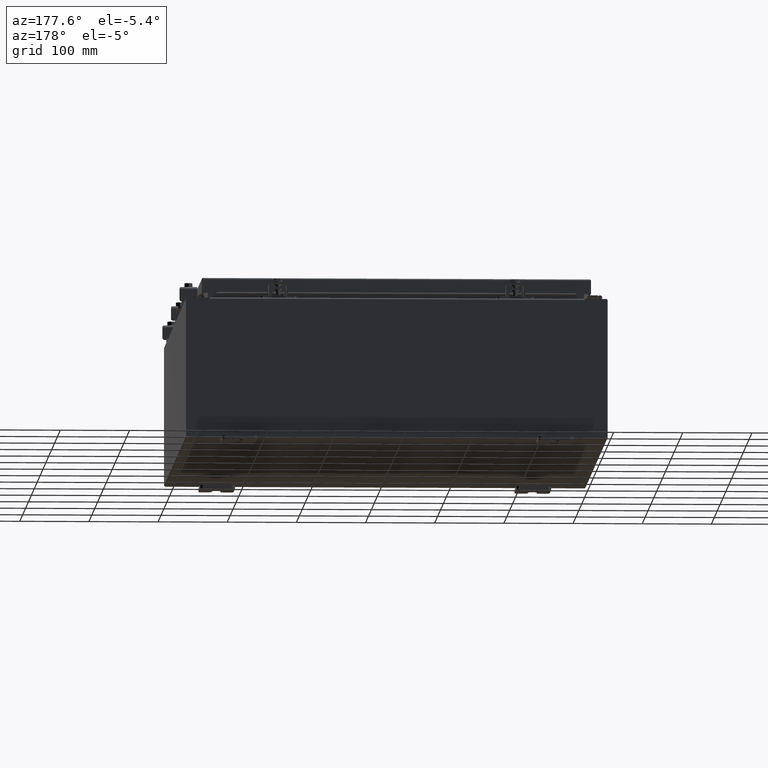
[diagram: clean part render]
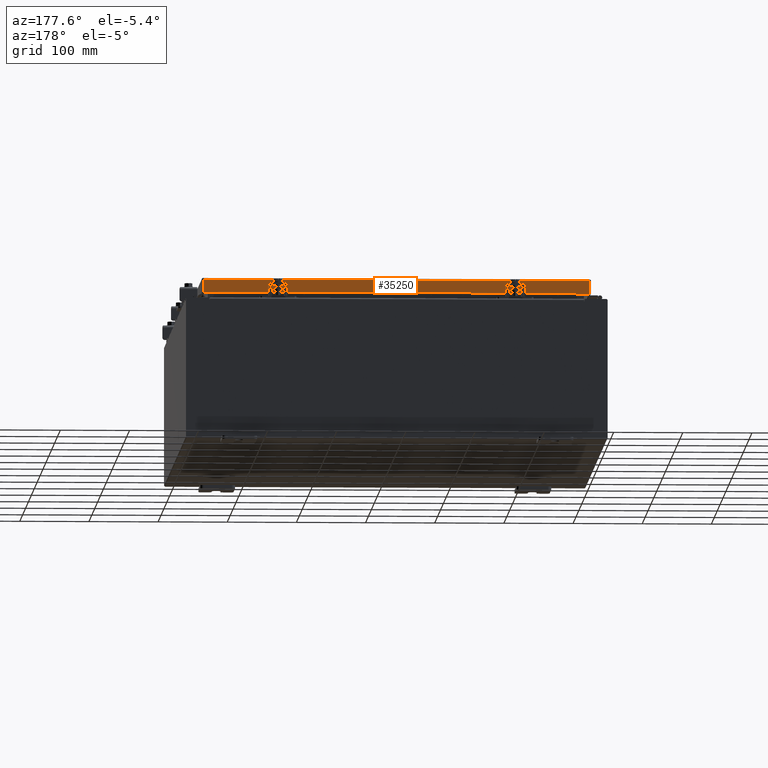
[diagram: same view with one face highlighted and labeled with its STEP entity id]
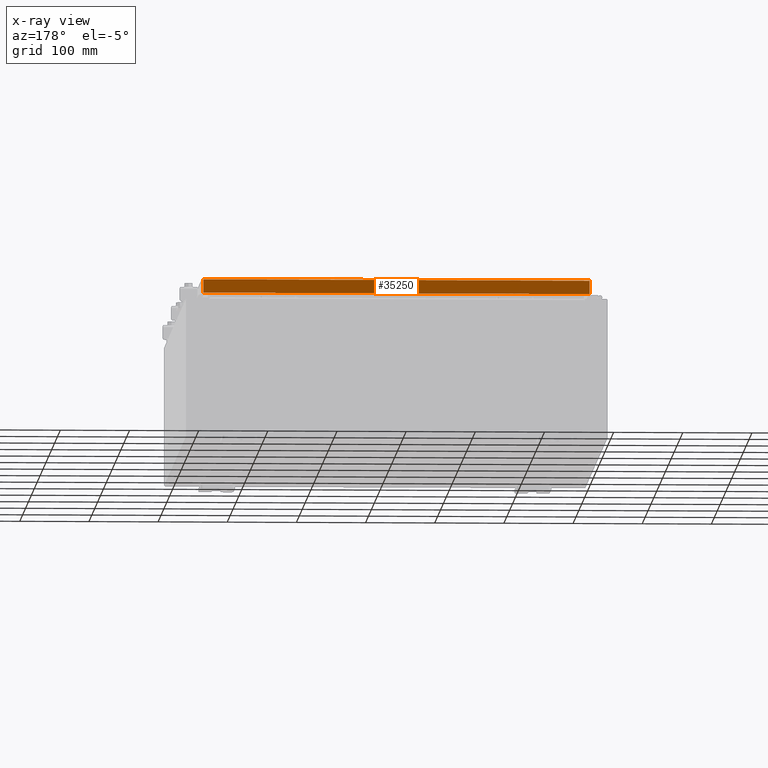
[diagram: x-ray of the same camera — body ghosted, the highlighted face saturated]
A machine part, auxiliary view. The second image highlights one B-rep face of the part: STEP entity #35250.
The next image is the same camera in x-ray: the body ghosted, the highlighted face saturated — about 0% of this face is hidden behind the body in this view.
In plain terms, the highlighted planar face has unit normal (0, -1, -0).
Its self-contained STEP definition (entity closure, byte-faithful):
#470 = DIRECTION ( 'NONE',  ( 1.000000000000000000, -4.379057701015054300E-047, 1.233005954894504400E-016 ) ) ;
#937 = CARTESIAN_POINT ( 'NONE',  ( -10.98915786437626900, 14.09400000000000100, -0.8500000000000024200 ) ) ;
#1884 = ORIENTED_EDGE ( 'NONE', *, *, #10351, .F. ) ;
#1970 = CARTESIAN_POINT ( 'NONE',  ( -10.98915786437626900, 14.09399999999999900, -0.07469999999999978000 ) ) ;
#2483 = LINE ( 'NONE', #1970, #9331 ) ;
#3144 = ORIENTED_EDGE ( 'NONE', *, *, #34781, .F. ) ;
#3390 = FACE_OUTER_BOUND ( 'NONE', #26635, .T. ) ;
#3475 = VERTEX_POINT ( 'NONE', #15462 ) ;
#3788 = LINE ( 'NONE', #26437, #18370 ) ;
#4232 = CARTESIAN_POINT ( 'NONE',  ( -4.898647335700341400E-030, 14.09399999999999900, 3.999012166344507700E-014 ) ) ;
#4462 = VECTOR ( 'NONE', #5288, 39.37007874015748100 ) ;
#5198 = VERTEX_POINT ( 'NONE', #36997 ) ;
#5288 = DIRECTION ( 'NONE',  ( -1.000000000000000000, -3.475696988576942200E-031, -9.473942235605600700E-046 ) ) ;
#5714 = VECTOR ( 'NONE', #27086, 39.37007874015748100 ) ;
#5829 = VERTEX_POINT ( 'NONE', #28747 ) ;
#6561 = LINE ( 'NONE', #36076, #12480 ) ;
#7145 = DIRECTION ( 'NONE',  ( 3.475696988576941300E-031, -1.000000000000000000, -2.818880942772350300E-015 ) ) ;
#8229 = ORIENTED_EDGE ( 'NONE', *, *, #29723, .F. ) ;
#8385 = AXIS2_PLACEMENT_3D ( 'NONE', #4232, #7145, #27399 ) ;
#9331 = VECTOR ( 'NONE', #28050, 39.37007874015748100 ) ;
#9769 = CARTESIAN_POINT ( 'NONE',  ( -11.07799999999999900, 14.09400000000000100, -0.8500000000000024200 ) ) ;
#10351 = EDGE_CURVE ( 'NONE', #3475, #11690, #10589, .T. ) ;
#10589 = LINE ( 'NONE', #21447, #32737 ) ;
#11049 = EDGE_CURVE ( 'NONE', #21235, #3475, #3788, .T. ) ;
#11240 = CARTESIAN_POINT ( 'NONE',  ( 10.98915786437626700, 14.09400000000000100, -0.8499999999999996400 ) ) ;
#11690 = VERTEX_POINT ( 'NONE', #30613 ) ;
#12480 = VECTOR ( 'NONE', #30271, 39.37007874015748100 ) ;
#12683 = VERTEX_POINT ( 'NONE', #11240 ) ;
#15462 = CARTESIAN_POINT ( 'NONE',  ( -10.23915786437627100, 14.09399999999999900, -0.8500000000000033100 ) ) ;
#18370 = VECTOR ( 'NONE', #470, 39.37007874015748100 ) ;
#19824 = CARTESIAN_POINT ( 'NONE',  ( -11.07799999999999900, 14.09399999999999900, -0.08770000000000007000 ) ) ;
#19959 = LINE ( 'NONE', #19824, #4462 ) ;
#20037 = ORIENTED_EDGE ( 'NONE', *, *, #28072, .F. ) ;
#20283 = LINE ( 'NONE', #9769, #5714 ) ;
#21235 = VERTEX_POINT ( 'NONE', #937 ) ;
#21330 = EDGE_CURVE ( 'NONE', #5198, #12683, #6561, .T. ) ;
#21447 = CARTESIAN_POINT ( 'NONE',  ( -10.23915786437627100, 14.09399999999999900, -0.8500000000000033100 ) ) ;
#21642 = PLANE ( 'NONE',  #8385 ) ;
#24338 = DIRECTION ( 'NONE',  ( 1.000000000000000000, -0.0000000000000000000, -0.0000000000000000000 ) ) ;
#26437 = CARTESIAN_POINT ( 'NONE',  ( -11.07799999999999900, 14.09400000000000100, -0.8500000000000024200 ) ) ;
#26635 = EDGE_LOOP ( 'NONE', ( #20037, #27019, #8229, #1884, #27774, #3144 ) ) ;
#27019 = ORIENTED_EDGE ( 'NONE', *, *, #21330, .T. ) ;
#27086 = DIRECTION ( 'NONE',  ( 1.000000000000000000, -4.379057701015054300E-047, 1.233005954894504400E-016 ) ) ;
#27399 = DIRECTION ( 'NONE',  ( 0.0000000000000000000, 2.818880942772350300E-015, -1.000000000000000000 ) ) ;
#27774 = ORIENTED_EDGE ( 'NONE', *, *, #11049, .F. ) ;
#28050 = DIRECTION ( 'NONE',  ( -0.0000000000000000000, 2.818880942772350300E-015, -1.000000000000000000 ) ) ;
#28072 = EDGE_CURVE ( 'NONE', #5198, #5829, #19959, .T. ) ;
#28747 = CARTESIAN_POINT ( 'NONE',  ( -10.98915786437626700, 14.09399999999999900, -0.08770000000000007000 ) ) ;
#29723 = EDGE_CURVE ( 'NONE', #11690, #12683, #20283, .T. ) ;
#30271 = DIRECTION ( 'NONE',  ( 0.0000000000000000000, 2.818880942772350300E-015, -1.000000000000000000 ) ) ;
#30613 = CARTESIAN_POINT ( 'NONE',  ( 10.23915786437626700, 14.09399999999999900, -0.8500000000000033100 ) ) ;
#32737 = VECTOR ( 'NONE', #24338, 39.37007874015748100 ) ;
#34781 = EDGE_CURVE ( 'NONE', #5829, #21235, #2483, .T. ) ;
#35250 = ADVANCED_FACE ( 'NONE', ( #3390 ), #21642, .F. ) ;
#36076 = CARTESIAN_POINT ( 'NONE',  ( 10.98915786437626900, 14.09399999999999900, 3.999012166344507700E-014 ) ) ;
#36997 = CARTESIAN_POINT ( 'NONE',  ( 10.98915786437626700, 14.09399999999999900, -0.08770000000000007000 ) ) ;